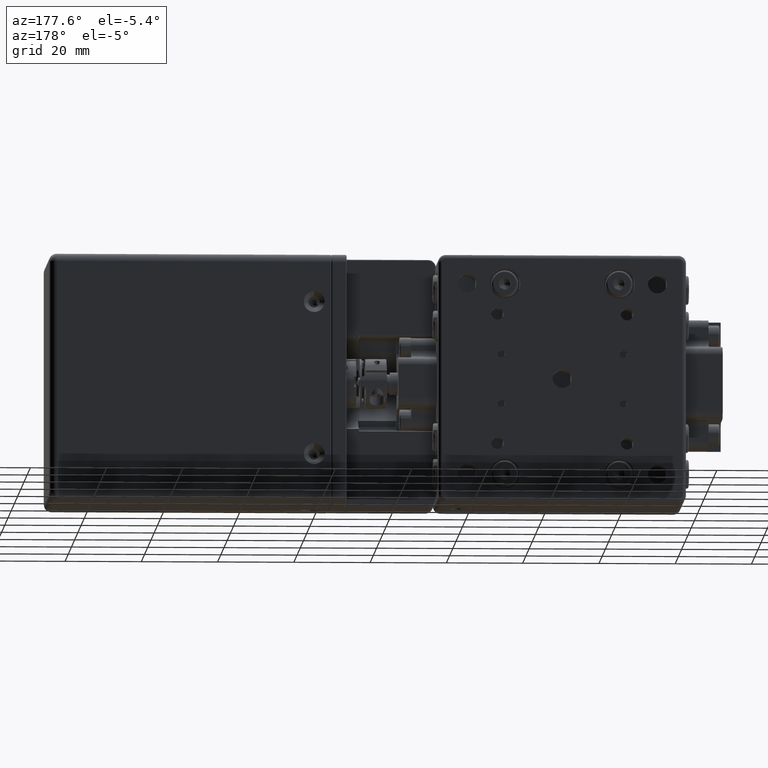
[diagram: clean part render]
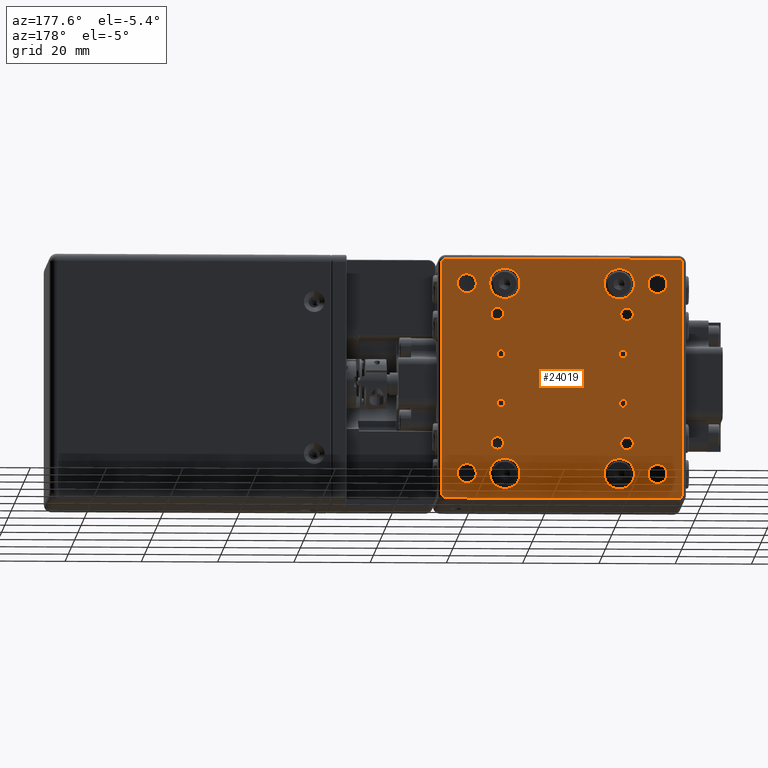
[diagram: same view with one face highlighted and labeled with its STEP entity id]
A machine part, auxiliary view. The second image highlights one B-rep face of the part: STEP entity #24019.
In plain terms, the highlighted planar face has unit normal (0, -1, 0).
Its self-contained STEP definition (entity closure, byte-faithful):
#160 = CARTESIAN_POINT ( 'NONE',  ( -89.48615177131389942, 20.00221016956369979, -21.00000000000000000 ) ) ;
#198 = FACE_BOUND ( 'NONE', #26716, .T. ) ;
#207 = CARTESIAN_POINT ( 'NONE',  ( -79.48615177131389942, 20.00221016956369979, -25.00000000000000000 ) ) ;
#341 = CARTESIAN_POINT ( 'NONE',  ( -79.48615177131389942, 20.00221016956369979, 22.50000000000000000 ) ) ;
#345 = CIRCLE ( 'NONE', #2272, 4.000000000000000000 ) ;
#977 = DIRECTION ( 'NONE',  ( 0.000000000000000000, 0.000000000000000000, 1.000000000000000000 ) ) ;
#1223 = AXIS2_PLACEMENT_3D ( 'NONE', #16522, #42801, #42518 ) ;
#1287 = VERTEX_POINT ( 'NONE', #40618 ) ;
#1410 = CARTESIAN_POINT ( 'NONE',  ( -87.48615177131389942, 20.00221016956369979, 15.35000000000000142 ) ) ;
#1526 = DIRECTION ( 'NONE',  ( 0.000000000000000000, 1.000000000000000000, 0.000000000000000000 ) ) ;
#1582 = DIRECTION ( 'NONE',  ( 0.000000000000000000, 0.000000000000000000, 1.000000000000000000 ) ) ;
#1676 = DIRECTION ( 'NONE',  ( 0.000000000000000000, 1.000000000000000000, 0.000000000000000000 ) ) ;
#1743 = AXIS2_PLACEMENT_3D ( 'NONE', #5303, #36065, #13486 ) ;
#1745 = EDGE_CURVE ( 'NONE', #17860, #11691, #36659, .T. ) ;
#1824 = AXIS2_PLACEMENT_3D ( 'NONE', #43142, #13214, #30702 ) ;
#1880 = CIRCLE ( 'NONE', #47033, 2.499999999999998668 ) ;
#2019 = ORIENTED_EDGE ( 'NONE', *, *, #41948, .F. ) ;
#2020 = DIRECTION ( 'NONE',  ( 0.000000000000000000, 1.000000000000000000, 0.000000000000000000 ) ) ;
#2095 = VERTEX_POINT ( 'NONE', #35090 ) ;
#2272 = AXIS2_PLACEMENT_3D ( 'NONE', #34357, #35182, #22179 ) ;
#2326 = CARTESIAN_POINT ( 'NONE',  ( -119.4861517713139989, 20.00221016956369979, -21.00000000000000000 ) ) ;
#2679 = CARTESIAN_POINT ( 'NONE',  ( -73.98615177131389942, 20.00221016956369979, -30.50000000000000000 ) ) ;
#2875 = CARTESIAN_POINT ( 'NONE',  ( -79.48615177131389942, 20.00221016956369979, 25.00000000000000000 ) ) ;
#2887 = CARTESIAN_POINT ( 'NONE',  ( -104.4861517713139989, 20.00221016956369979, 8.597364329291679493E-14 ) ) ;
#2987 = CIRCLE ( 'NONE', #48138, 4.000000000000000000 ) ;
#2995 = AXIS2_PLACEMENT_3D ( 'NONE', #22770, #23593, #1582 ) ;
#3526 = CARTESIAN_POINT ( 'NONE',  ( -72.98615177131389942, 20.00221016956369979, 32.50000000000000000 ) ) ;
#3590 = CARTESIAN_POINT ( 'NONE',  ( -73.98615177131389942, 20.00221016956369979, 31.50000000000000000 ) ) ;
#3592 = ORIENTED_EDGE ( 'NONE', *, *, #10110, .T. ) ;
#3655 = ORIENTED_EDGE ( 'NONE', *, *, #38895, .F. ) ;
#4036 = CARTESIAN_POINT ( 'NONE',  ( -120.4861517713139989, 20.00221016956369979, -5.474999999999940137 ) ) ;
#4163 = ORIENTED_EDGE ( 'NONE', *, *, #13833, .F. ) ;
#4595 = CARTESIAN_POINT ( 'NONE',  ( -121.4861517713139989, 20.00221016956369979, 17.00000000000000000 ) ) ;
#4690 = CIRCLE ( 'NONE', #10954, 4.000000000000000000 ) ;
#4746 = FACE_BOUND ( 'NONE', #44849, .T. ) ;
#5157 = AXIS2_PLACEMENT_3D ( 'NONE', #11938, #55726, #30574 ) ;
#5164 = EDGE_CURVE ( 'NONE', #41518, #45672, #30570, .T. ) ;
#5303 = CARTESIAN_POINT ( 'NONE',  ( -136.9861517713140131, 20.00221016956369979, 32.50000000000000000 ) ) ;
#5411 = CIRCLE ( 'NONE', #15302, 2.499999999999998668 ) ;
#5535 = EDGE_LOOP ( 'NONE', ( #18048, #23850 ) ) ;
#5540 = AXIS2_PLACEMENT_3D ( 'NONE', #39432, #30658, #39967 ) ;
#5612 = DIRECTION ( 'NONE',  ( 0.000000000000000000, 0.000000000000000000, 1.000000000000000000 ) ) ;
#5754 = VERTEX_POINT ( 'NONE', #20500 ) ;
#5907 = EDGE_LOOP ( 'NONE', ( #15733, #54047 ) ) ;
#6310 = ORIENTED_EDGE ( 'NONE', *, *, #53824, .F. ) ;
#6322 = AXIS2_PLACEMENT_3D ( 'NONE', #39955, #1526, #18755 ) ;
#6493 = ORIENTED_EDGE ( 'NONE', *, *, #14851, .F. ) ;
#6523 = AXIS2_PLACEMENT_3D ( 'NONE', #54038, #36262, #48982 ) ;
#6612 = ORIENTED_EDGE ( 'NONE', *, *, #55204, .F. ) ;
#6662 = VERTEX_POINT ( 'NONE', #24890 ) ;
#7301 = CARTESIAN_POINT ( 'NONE',  ( -135.9861517713140131, 20.00221016956369979, 30.50000000000000000 ) ) ;
#7769 = VERTEX_POINT ( 'NONE', #23700 ) ;
#8044 = LINE ( 'NONE', #3526, #55301 ) ;
#8058 = VERTEX_POINT ( 'NONE', #35829 ) ;
#8083 = CARTESIAN_POINT ( 'NONE',  ( -87.48615177131389942, 20.00221016956369979, -15.35000000000000142 ) ) ;
#8231 = VERTEX_POINT ( 'NONE', #32978 ) ;
#8288 = VECTOR ( 'NONE', #24573, 1000.000000000000000 ) ;
#8521 = DIRECTION ( 'NONE',  ( 0.000000000000000000, 0.000000000000000000, -1.000000000000000000 ) ) ;
#8604 = ORIENTED_EDGE ( 'NONE', *, *, #46741, .F. ) ;
#8617 = CIRCLE ( 'NONE', #54615, 1.024999999999988587 ) ;
#8864 = ORIENTED_EDGE ( 'NONE', *, *, #42405, .T. ) ;
#9231 = CIRCLE ( 'NONE', #6523, 1.649999999999998579 ) ;
#9488 = VECTOR ( 'NONE', #39833, 1000.000000000000000 ) ;
#9743 = DIRECTION ( 'NONE',  ( 0.000000000000000000, 1.000000000000000000, 0.000000000000000000 ) ) ;
#9765 = EDGE_CURVE ( 'NONE', #12073, #19475, #45503, .T. ) ;
#10110 = EDGE_CURVE ( 'NONE', #8058, #52720, #14126, .T. ) ;
#10219 = CARTESIAN_POINT ( 'NONE',  ( -89.48615177131389942, 20.00221016956369979, 21.00000000000000000 ) ) ;
#10740 = CIRCLE ( 'NONE', #14330, 2.499999999999998668 ) ;
#10954 = AXIS2_PLACEMENT_3D ( 'NONE', #15042, #2020, #26722 ) ;
#10961 = CIRCLE ( 'NONE', #20872, 2.499999999999998668 ) ;
#11030 = ORIENTED_EDGE ( 'NONE', *, *, #19703, .F. ) ;
#11299 = DIRECTION ( 'NONE',  ( 0.000000000000000000, 1.000000000000000000, 0.000000000000000000 ) ) ;
#11469 = DIRECTION ( 'NONE',  ( 0.000000000000000000, 1.000000000000000000, 0.000000000000000000 ) ) ;
#11576 = CARTESIAN_POINT ( 'NONE',  ( -88.48615177131389942, 20.00221016956369979, -6.500000000000000000 ) ) ;
#11593 = CARTESIAN_POINT ( 'NONE',  ( -136.9861517713140131, 20.00221016956369979, 31.50000000000000000 ) ) ;
#11597 = AXIS2_PLACEMENT_3D ( 'NONE', #30120, #42831, #977 ) ;
#11691 = VERTEX_POINT ( 'NONE', #46517 ) ;
#11717 = AXIS2_PLACEMENT_3D ( 'NONE', #31214, #9743, #26962 ) ;
#11766 = DIRECTION ( 'NONE',  ( 0.000000000000000000, 1.000000000000000000, 0.000000000000000000 ) ) ;
#11938 = CARTESIAN_POINT ( 'NONE',  ( -120.4861517713139989, 20.00221016956369979, -6.500000000000000000 ) ) ;
#12073 = VERTEX_POINT ( 'NONE', #16608 ) ;
#12088 = FACE_BOUND ( 'NONE', #5535, .T. ) ;
#12227 = DIRECTION ( 'NONE',  ( 0.000000000000000000, 0.000000000000000000, 1.000000000000000000 ) ) ;
#12234 = DIRECTION ( 'NONE',  ( 0.000000000000000000, 0.000000000000000000, 1.000000000000000000 ) ) ;
#12510 = CARTESIAN_POINT ( 'NONE',  ( -120.4861517713139989, 20.00221016956369979, -6.500000000000000000 ) ) ;
#12627 = ORIENTED_EDGE ( 'NONE', *, *, #50095, .F. ) ;
#12774 = CARTESIAN_POINT ( 'NONE',  ( -88.48615177131389942, 20.00221016956369979, 5.475000000000060041 ) ) ;
#12848 = DIRECTION ( 'NONE',  ( 0.000000000000000000, 0.000000000000000000, -1.000000000000000000 ) ) ;
#12901 = ORIENTED_EDGE ( 'NONE', *, *, #9765, .F. ) ;
#12921 = DIRECTION ( 'NONE',  ( 0.000000000000000000, 0.000000000000000000, 1.000000000000000000 ) ) ;
#12939 = FACE_BOUND ( 'NONE', #34148, .T. ) ;
#13214 = DIRECTION ( 'NONE',  ( 0.000000000000000000, 1.000000000000000000, 0.000000000000000000 ) ) ;
#13486 = DIRECTION ( 'NONE',  ( 0.000000000000000000, 0.000000000000000000, -1.000000000000000000 ) ) ;
#13792 = CIRCLE ( 'NONE', #22814, 2.499999999999998668 ) ;
#13833 = EDGE_CURVE ( 'NONE', #48128, #20720, #345, .T. ) ;
#13958 = CARTESIAN_POINT ( 'NONE',  ( -88.48615177131389942, 20.00221016956369979, -7.524999999999999467 ) ) ;
#14014 = ORIENTED_EDGE ( 'NONE', *, *, #46430, .T. ) ;
#14110 = ORIENTED_EDGE ( 'NONE', *, *, #45213, .F. ) ;
#14126 = LINE ( 'NONE', #18638, #9488 ) ;
#14164 = DIRECTION ( 'NONE',  ( 0.000000000000000000, 0.000000000000000000, 1.000000000000000000 ) ) ;
#14330 = AXIS2_PLACEMENT_3D ( 'NONE', #2875, #42424, #20106 ) ;
#14851 = EDGE_CURVE ( 'NONE', #19475, #12073, #2987, .T. ) ;
#15042 = CARTESIAN_POINT ( 'NONE',  ( -89.48615177131389942, 20.00221016956369979, 25.00000000000000000 ) ) ;
#15138 = VERTEX_POINT ( 'NONE', #8083 ) ;
#15253 = EDGE_LOOP ( 'NONE', ( #20730, #52137, #8864, #38418, #14014, #26654, #3592, #40141 ) ) ;
#15302 = AXIS2_PLACEMENT_3D ( 'NONE', #40782, #24368, #15908 ) ;
#15467 = CARTESIAN_POINT ( 'NONE',  ( -120.4861517713139989, 20.00221016956369979, 5.475000000000060041 ) ) ;
#15507 = CIRCLE ( 'NONE', #21841, 2.500000000000000000 ) ;
#15666 = DIRECTION ( 'NONE',  ( 0.000000000000000000, 0.000000000000000000, 1.000000000000000000 ) ) ;
#15719 = AXIS2_PLACEMENT_3D ( 'NONE', #12510, #50940, #12234 ) ;
#15733 = ORIENTED_EDGE ( 'NONE', *, *, #24571, .F. ) ;
#15871 = ORIENTED_EDGE ( 'NONE', *, *, #53485, .F. ) ;
#15908 = DIRECTION ( 'NONE',  ( 0.000000000000000000, 0.000000000000000000, 1.000000000000000000 ) ) ;
#15938 = ORIENTED_EDGE ( 'NONE', *, *, #23209, .F. ) ;
#16438 = CARTESIAN_POINT ( 'NONE',  ( -72.98615177131389942, 20.00221016956369979, -30.50000000000000000 ) ) ;
#16522 = CARTESIAN_POINT ( 'NONE',  ( -134.9861517713140131, 20.00221016956369979, 30.50000000000000000 ) ) ;
#16608 = CARTESIAN_POINT ( 'NONE',  ( -89.48615177131389942, 20.00221016956369979, -29.00000000000000000 ) ) ;
#16664 = CIRCLE ( 'NONE', #48249, 2.499999999999998668 ) ;
#16854 = EDGE_LOOP ( 'NONE', ( #54605, #32365 ) ) ;
#17071 = DIRECTION ( 'NONE',  ( 0.000000000000000000, 0.000000000000000000, 1.000000000000000000 ) ) ;
#17081 = CARTESIAN_POINT ( 'NONE',  ( -134.9861517713140131, 20.00221016956369979, -31.50000000000000000 ) ) ;
#17285 = DIRECTION ( 'NONE',  ( 0.000000000000000000, 0.000000000000000000, 1.000000000000000000 ) ) ;
#17345 = AXIS2_PLACEMENT_3D ( 'NONE', #2679, #11469, #51497 ) ;
#17420 = DIRECTION ( 'NONE',  ( 0.000000000000000000, 1.000000000000000000, 0.000000000000000000 ) ) ;
#17435 = FACE_BOUND ( 'NONE', #37149, .T. ) ;
#17860 = VERTEX_POINT ( 'NONE', #1410 ) ;
#18047 = ORIENTED_EDGE ( 'NONE', *, *, #41249, .F. ) ;
#18048 = ORIENTED_EDGE ( 'NONE', *, *, #21971, .F. ) ;
#18079 = EDGE_LOOP ( 'NONE', ( #27958, #18047 ) ) ;
#18091 = CIRCLE ( 'NONE', #1824, 4.000000000000000000 ) ;
#18112 = CIRCLE ( 'NONE', #32543, 1.650000000000000355 ) ;
#18293 = CARTESIAN_POINT ( 'NONE',  ( -121.4861517713139989, 20.00221016956369979, 18.64999999999999858 ) ) ;
#18313 = ORIENTED_EDGE ( 'NONE', *, *, #51900, .F. ) ;
#18409 = AXIS2_PLACEMENT_3D ( 'NONE', #42987, #47784, #8521 ) ;
#18638 = CARTESIAN_POINT ( 'NONE',  ( -135.9861517713140131, 20.00221016956369979, 32.50000000000000000 ) ) ;
#18755 = DIRECTION ( 'NONE',  ( 0.000000000000000000, 0.000000000000000000, -1.000000000000000000 ) ) ;
#18795 = EDGE_CURVE ( 'NONE', #45672, #41518, #8617, .T. ) ;
#18836 = VERTEX_POINT ( 'NONE', #49163 ) ;
#19070 = ORIENTED_EDGE ( 'NONE', *, *, #19360, .F. ) ;
#19306 = AXIS2_PLACEMENT_3D ( 'NONE', #50464, #11766, #46230 ) ;
#19360 = EDGE_CURVE ( 'NONE', #40419, #43889, #31997, .T. ) ;
#19475 = VERTEX_POINT ( 'NONE', #160 ) ;
#19703 = EDGE_CURVE ( 'NONE', #21365, #35845, #4690, .T. ) ;
#19773 = CARTESIAN_POINT ( 'NONE',  ( -129.4861517713140131, 20.00221016956369979, -25.00000000000000000 ) ) ;
#19810 = EDGE_LOOP ( 'NONE', ( #6493, #12901 ) ) ;
#19934 = AXIS2_PLACEMENT_3D ( 'NONE', #52478, #47694, #44280 ) ;
#19959 = VERTEX_POINT ( 'NONE', #29877 ) ;
#20055 = EDGE_CURVE ( 'NONE', #43889, #40419, #18091, .T. ) ;
#20091 = ORIENTED_EDGE ( 'NONE', *, *, #25677, .F. ) ;
#20105 = CARTESIAN_POINT ( 'NONE',  ( -87.48615177131389942, 20.00221016956369979, 17.00000000000000000 ) ) ;
#20106 = DIRECTION ( 'NONE',  ( 0.000000000000000000, 0.000000000000000000, 1.000000000000000000 ) ) ;
#20500 = CARTESIAN_POINT ( 'NONE',  ( -79.48615177131389942, 20.00221016956369979, -27.50000000000000000 ) ) ;
#20547 = CARTESIAN_POINT ( 'NONE',  ( -89.48615177131389942, 20.00221016956369979, 29.00000000000000000 ) ) ;
#20720 = VERTEX_POINT ( 'NONE', #2326 ) ;
#20730 = ORIENTED_EDGE ( 'NONE', *, *, #30243, .T. ) ;
#20749 = EDGE_CURVE ( 'NONE', #28941, #1287, #37082, .T. ) ;
#20828 = FACE_BOUND ( 'NONE', #16854, .T. ) ;
#20872 = AXIS2_PLACEMENT_3D ( 'NONE', #53139, #52875, #14164 ) ;
#21107 = CIRCLE ( 'NONE', #51823, 1.024999999999988587 ) ;
#21175 = DIRECTION ( 'NONE',  ( 0.000000000000000000, 0.000000000000000000, 1.000000000000000000 ) ) ;
#21258 = DIRECTION ( 'NONE',  ( 0.000000000000000000, 1.000000000000000000, 0.000000000000000000 ) ) ;
#21365 = VERTEX_POINT ( 'NONE', #20547 ) ;
#21400 = DIRECTION ( 'NONE',  ( 0.000000000000000000, 0.000000000000000000, 1.000000000000000000 ) ) ;
#21674 = CARTESIAN_POINT ( 'NONE',  ( -87.48615177131389942, 20.00221016956369979, -18.64999999999999858 ) ) ;
#21798 = DIRECTION ( 'NONE',  ( 0.000000000000000000, 1.000000000000000000, 0.000000000000000000 ) ) ;
#21841 = AXIS2_PLACEMENT_3D ( 'NONE', #37219, #28478, #28180 ) ;
#21882 = CIRCLE ( 'NONE', #24581, 2.499999999999998668 ) ;
#21971 = EDGE_CURVE ( 'NONE', #33283, #49472, #9231, .T. ) ;
#22179 = DIRECTION ( 'NONE',  ( 0.000000000000000000, 0.000000000000000000, 1.000000000000000000 ) ) ;
#22569 = CIRCLE ( 'NONE', #11717, 1.650000000000000355 ) ;
#22770 = CARTESIAN_POINT ( 'NONE',  ( -129.4861517713140131, 20.00221016956369979, 25.00000000000000000 ) ) ;
#22814 = AXIS2_PLACEMENT_3D ( 'NONE', #50006, #29394, #38145 ) ;
#23183 = ORIENTED_EDGE ( 'NONE', *, *, #1745, .F. ) ;
#23209 = EDGE_CURVE ( 'NONE', #15138, #53473, #22569, .T. ) ;
#23422 = ORIENTED_EDGE ( 'NONE', *, *, #32192, .F. ) ;
#23593 = DIRECTION ( 'NONE',  ( 0.000000000000000000, 1.000000000000000000, 0.000000000000000000 ) ) ;
#23700 = CARTESIAN_POINT ( 'NONE',  ( -79.48615177131389942, 20.00221016956369979, 27.50000000000000000 ) ) ;
#23850 = ORIENTED_EDGE ( 'NONE', *, *, #51830, .F. ) ;
#24010 = AXIS2_PLACEMENT_3D ( 'NONE', #20105, #45271, #41871 ) ;
#24019 = ADVANCED_FACE ( 'NONE', ( #20828, #29608, #46835, #51635, #4746, #12939, #25078, #25356, #30171, #50796, #12088, #47412, #25919, #43153, #38917, #198, #17435, #34698 ), #30716, .F. ) ;
#24024 = DIRECTION ( 'NONE',  ( 0.000000000000000000, 1.000000000000000000, 0.000000000000000000 ) ) ;
#24368 = DIRECTION ( 'NONE',  ( 0.000000000000000000, 1.000000000000000000, 0.000000000000000000 ) ) ;
#24457 = EDGE_CURVE ( 'NONE', #33625, #53042, #27927, .T. ) ;
#24571 = EDGE_CURVE ( 'NONE', #19959, #5754, #5411, .T. ) ;
#24573 = DIRECTION ( 'NONE',  ( 1.000000000000000000, 0.000000000000000000, 0.000000000000000000 ) ) ;
#24581 = AXIS2_PLACEMENT_3D ( 'NONE', #38629, #17420, #12921 ) ;
#24626 = VERTEX_POINT ( 'NONE', #42737 ) ;
#24890 = CARTESIAN_POINT ( 'NONE',  ( -129.4861517713140131, 20.00221016956369979, -27.50000000000000000 ) ) ;
#24938 = CARTESIAN_POINT ( 'NONE',  ( -87.48615177131389942, 20.00221016956369979, -17.00000000000000000 ) ) ;
#25078 = FACE_BOUND ( 'NONE', #37495, .T. ) ;
#25084 = CARTESIAN_POINT ( 'NONE',  ( -134.9861517713140131, 20.00221016956369979, -31.50000000000000000 ) ) ;
#25106 = CARTESIAN_POINT ( 'NONE',  ( -88.48615177131389942, 20.00221016956369979, 6.500000000000000000 ) ) ;
#25356 = FACE_BOUND ( 'NONE', #19810, .T. ) ;
#25427 = CARTESIAN_POINT ( 'NONE',  ( -129.4861517713140131, 20.00221016956369979, 27.50000000000000000 ) ) ;
#25516 = CIRCLE ( 'NONE', #26412, 1.024999999999988587 ) ;
#25677 = EDGE_CURVE ( 'NONE', #2095, #18836, #39162, .T. ) ;
#25838 = LINE ( 'NONE', #17081, #36724 ) ;
#25919 = FACE_BOUND ( 'NONE', #52555, .T. ) ;
#25964 = ORIENTED_EDGE ( 'NONE', *, *, #43812, .F. ) ;
#26027 = AXIS2_PLACEMENT_3D ( 'NONE', #29517, #55214, #15666 ) ;
#26412 = AXIS2_PLACEMENT_3D ( 'NONE', #33624, #42365, #21175 ) ;
#26578 = VERTEX_POINT ( 'NONE', #37826 ) ;
#26654 = ORIENTED_EDGE ( 'NONE', *, *, #54200, .T. ) ;
#26716 = EDGE_LOOP ( 'NONE', ( #23422, #25964 ) ) ;
#26722 = DIRECTION ( 'NONE',  ( 0.000000000000000000, 0.000000000000000000, 1.000000000000000000 ) ) ;
#26813 = CIRCLE ( 'NONE', #5157, 1.024999999999988587 ) ;
#26929 = CIRCLE ( 'NONE', #11597, 1.024999999999988587 ) ;
#26962 = DIRECTION ( 'NONE',  ( 0.000000000000000000, 0.000000000000000000, 1.000000000000000000 ) ) ;
#26986 = EDGE_LOOP ( 'NONE', ( #6612, #39012 ) ) ;
#27293 = EDGE_LOOP ( 'NONE', ( #12627, #2019 ) ) ;
#27340 = VERTEX_POINT ( 'NONE', #41673 ) ;
#27880 = VERTEX_POINT ( 'NONE', #4036 ) ;
#27927 = CIRCLE ( 'NONE', #6322, 1.000000000000000888 ) ;
#27958 = ORIENTED_EDGE ( 'NONE', *, *, #43237, .F. ) ;
#28096 = VERTEX_POINT ( 'NONE', #25427 ) ;
#28180 = DIRECTION ( 'NONE',  ( 0.000000000000000000, 0.000000000000000000, 1.000000000000000000 ) ) ;
#28281 = CIRCLE ( 'NONE', #1223, 1.000000000000000888 ) ;
#28478 = DIRECTION ( 'NONE',  ( 0.000000000000000000, 1.000000000000000000, 0.000000000000000000 ) ) ;
#28534 = DIRECTION ( 'NONE',  ( 0.000000000000000000, 0.000000000000000000, 1.000000000000000000 ) ) ;
#28814 = ORIENTED_EDGE ( 'NONE', *, *, #49723, .F. ) ;
#28906 = DIRECTION ( 'NONE',  ( 0.000000000000000000, 1.000000000000000000, 0.000000000000000000 ) ) ;
#28941 = VERTEX_POINT ( 'NONE', #32247 ) ;
#28956 = CIRCLE ( 'NONE', #19934, 4.000000000000000000 ) ;
#29184 = CIRCLE ( 'NONE', #2995, 2.499999999999998668 ) ;
#29394 = DIRECTION ( 'NONE',  ( 0.000000000000000000, 1.000000000000000000, 0.000000000000000000 ) ) ;
#29517 = CARTESIAN_POINT ( 'NONE',  ( -87.48615177131389942, 20.00221016956369979, 17.00000000000000000 ) ) ;
#29608 = FACE_BOUND ( 'NONE', #18079, .T. ) ;
#29877 = CARTESIAN_POINT ( 'NONE',  ( -79.48615177131389942, 20.00221016956369979, -22.50000000000000000 ) ) ;
#30016 = DIRECTION ( 'NONE',  ( 0.000000000000000000, 1.000000000000000000, 0.000000000000000000 ) ) ;
#30120 = CARTESIAN_POINT ( 'NONE',  ( -120.4861517713139989, 20.00221016956369979, 6.500000000000000000 ) ) ;
#30171 = FACE_BOUND ( 'NONE', #45568, .T. ) ;
#30180 = DIRECTION ( 'NONE',  ( 0.000000000000000000, 1.000000000000000000, 0.000000000000000000 ) ) ;
#30243 = EDGE_CURVE ( 'NONE', #26578, #33625, #50295, .T. ) ;
#30570 = CIRCLE ( 'NONE', #31488, 1.024999999999988587 ) ;
#30574 = DIRECTION ( 'NONE',  ( 0.000000000000000000, 0.000000000000000000, 1.000000000000000000 ) ) ;
#30658 = DIRECTION ( 'NONE',  ( 0.000000000000000000, 1.000000000000000000, 0.000000000000000000 ) ) ;
#30702 = DIRECTION ( 'NONE',  ( 0.000000000000000000, 0.000000000000000000, 1.000000000000000000 ) ) ;
#30716 = PLANE ( 'NONE',  #1743 ) ;
#30812 = CARTESIAN_POINT ( 'NONE',  ( -89.48615177131389942, 20.00221016956369979, -25.00000000000000000 ) ) ;
#31214 = CARTESIAN_POINT ( 'NONE',  ( -87.48615177131389942, 20.00221016956369979, -17.00000000000000000 ) ) ;
#31488 = AXIS2_PLACEMENT_3D ( 'NONE', #25106, #42346, #5612 ) ;
#31917 = DIRECTION ( 'NONE',  ( 0.000000000000000000, 0.000000000000000000, 1.000000000000000000 ) ) ;
#31997 = CIRCLE ( 'NONE', #19306, 4.000000000000000000 ) ;
#32192 = EDGE_CURVE ( 'NONE', #27340, #36864, #26929, .T. ) ;
#32247 = CARTESIAN_POINT ( 'NONE',  ( -104.4861517713139989, 20.00221016956369979, 2.500000000000065281 ) ) ;
#32355 = EDGE_LOOP ( 'NONE', ( #15938, #18313 ) ) ;
#32365 = ORIENTED_EDGE ( 'NONE', *, *, #42570, .F. ) ;
#32543 = AXIS2_PLACEMENT_3D ( 'NONE', #24938, #42171, #38218 ) ;
#32850 = DIRECTION ( 'NONE',  ( 0.000000000000000000, 1.000000000000000000, 0.000000000000000000 ) ) ;
#32978 = CARTESIAN_POINT ( 'NONE',  ( -120.4861517713139989, 20.00221016956369979, -7.524999999999999467 ) ) ;
#33283 = VERTEX_POINT ( 'NONE', #18293 ) ;
#33624 = CARTESIAN_POINT ( 'NONE',  ( -88.48615177131389942, 20.00221016956369979, -6.500000000000000000 ) ) ;
#33625 = VERTEX_POINT ( 'NONE', #3590 ) ;
#34148 = EDGE_LOOP ( 'NONE', ( #15871, #4163 ) ) ;
#34357 = CARTESIAN_POINT ( 'NONE',  ( -119.4861517713139989, 20.00221016956369979, -25.00000000000000000 ) ) ;
#34436 = ORIENTED_EDGE ( 'NONE', *, *, #20749, .F. ) ;
#34612 = CARTESIAN_POINT ( 'NONE',  ( -89.48615177131389942, 20.00221016956369979, 25.00000000000000000 ) ) ;
#34684 = VERTEX_POINT ( 'NONE', #35093 ) ;
#34698 = FACE_OUTER_BOUND ( 'NONE', #15253, .T. ) ;
#35023 = ORIENTED_EDGE ( 'NONE', *, *, #5164, .F. ) ;
#35090 = CARTESIAN_POINT ( 'NONE',  ( -121.4861517713139989, 20.00221016956369979, -15.35000000000000142 ) ) ;
#35093 = CARTESIAN_POINT ( 'NONE',  ( -73.98615177131389942, 20.00221016956369979, -31.50000000000000000 ) ) ;
#35114 = CARTESIAN_POINT ( 'NONE',  ( -89.48615177131389942, 20.00221016956369979, -25.00000000000000000 ) ) ;
#35182 = DIRECTION ( 'NONE',  ( 0.000000000000000000, 1.000000000000000000, 0.000000000000000000 ) ) ;
#35366 = CARTESIAN_POINT ( 'NONE',  ( -129.4861517713140131, 20.00221016956369979, 22.50000000000000000 ) ) ;
#35430 = VERTEX_POINT ( 'NONE', #13958 ) ;
#35829 = CARTESIAN_POINT ( 'NONE',  ( -135.9861517713140131, 20.00221016956369979, -30.50000000000000000 ) ) ;
#35845 = VERTEX_POINT ( 'NONE', #10219 ) ;
#35890 = CARTESIAN_POINT ( 'NONE',  ( -88.48615177131389942, 20.00221016956369979, 6.500000000000000000 ) ) ;
#36065 = DIRECTION ( 'NONE',  ( 0.000000000000000000, -1.000000000000000000, 0.000000000000000000 ) ) ;
#36262 = DIRECTION ( 'NONE',  ( 0.000000000000000000, 1.000000000000000000, 0.000000000000000000 ) ) ;
#36549 = EDGE_CURVE ( 'NONE', #35430, #47151, #25516, .T. ) ;
#36659 = CIRCLE ( 'NONE', #24010, 1.649999999999998579 ) ;
#36724 = VECTOR ( 'NONE', #51845, 1000.000000000000000 ) ;
#36864 = VERTEX_POINT ( 'NONE', #15467 ) ;
#37082 = CIRCLE ( 'NONE', #50592, 2.500000000000000000 ) ;
#37149 = EDGE_LOOP ( 'NONE', ( #35023, #54854 ) ) ;
#37219 = CARTESIAN_POINT ( 'NONE',  ( -104.4861517713139989, 20.00221016956369979, 8.597364329291679493E-14 ) ) ;
#37420 = AXIS2_PLACEMENT_3D ( 'NONE', #35114, #21258, #43026 ) ;
#37495 = EDGE_LOOP ( 'NONE', ( #19070, #49110 ) ) ;
#37826 = CARTESIAN_POINT ( 'NONE',  ( -134.9861517713140131, 20.00221016956369979, 31.50000000000000000 ) ) ;
#37842 = EDGE_LOOP ( 'NONE', ( #20091, #6310 ) ) ;
#38145 = DIRECTION ( 'NONE',  ( 0.000000000000000000, 0.000000000000000000, 1.000000000000000000 ) ) ;
#38218 = DIRECTION ( 'NONE',  ( 0.000000000000000000, 0.000000000000000000, 1.000000000000000000 ) ) ;
#38418 = ORIENTED_EDGE ( 'NONE', *, *, #53050, .T. ) ;
#38564 = DIRECTION ( 'NONE',  ( 0.000000000000000000, 1.000000000000000000, 0.000000000000000000 ) ) ;
#38622 = CIRCLE ( 'NONE', #45818, 1.024999999999988587 ) ;
#38629 = CARTESIAN_POINT ( 'NONE',  ( -79.48615177131389942, 20.00221016956369979, 25.00000000000000000 ) ) ;
#38892 = CARTESIAN_POINT ( 'NONE',  ( -121.4861517713139989, 20.00221016956369979, 15.35000000000000142 ) ) ;
#38894 = AXIS2_PLACEMENT_3D ( 'NONE', #4595, #21798, #17285 ) ;
#38895 = EDGE_CURVE ( 'NONE', #8231, #27880, #44617, .T. ) ;
#38917 = FACE_BOUND ( 'NONE', #26986, .T. ) ;
#39012 = ORIENTED_EDGE ( 'NONE', *, *, #36549, .F. ) ;
#39141 = VERTEX_POINT ( 'NONE', #25084 ) ;
#39162 = CIRCLE ( 'NONE', #41840, 1.650000000000000355 ) ;
#39371 = EDGE_CURVE ( 'NONE', #5754, #19959, #16664, .T. ) ;
#39432 = CARTESIAN_POINT ( 'NONE',  ( -121.4861517713139989, 20.00221016956369979, -17.00000000000000000 ) ) ;
#39833 = DIRECTION ( 'NONE',  ( 0.000000000000000000, 0.000000000000000000, 1.000000000000000000 ) ) ;
#39955 = CARTESIAN_POINT ( 'NONE',  ( -73.98615177131389942, 20.00221016956369979, 30.50000000000000000 ) ) ;
#39967 = DIRECTION ( 'NONE',  ( 0.000000000000000000, 0.000000000000000000, 1.000000000000000000 ) ) ;
#40141 = ORIENTED_EDGE ( 'NONE', *, *, #43484, .T. ) ;
#40419 = VERTEX_POINT ( 'NONE', #52238 ) ;
#40605 = CARTESIAN_POINT ( 'NONE',  ( -119.4861517713139989, 20.00221016956369979, -29.00000000000000000 ) ) ;
#40618 = CARTESIAN_POINT ( 'NONE',  ( -104.4861517713139989, 20.00221016956369979, -2.499999999999904965 ) ) ;
#40782 = CARTESIAN_POINT ( 'NONE',  ( -79.48615177131389942, 20.00221016956369979, -25.00000000000000000 ) ) ;
#41249 = EDGE_CURVE ( 'NONE', #50419, #28096, #10961, .T. ) ;
#41261 = CARTESIAN_POINT ( 'NONE',  ( -88.48615177131389942, 20.00221016956369979, -5.474999999999940137 ) ) ;
#41518 = VERTEX_POINT ( 'NONE', #47168 ) ;
#41673 = CARTESIAN_POINT ( 'NONE',  ( -120.4861517713139989, 20.00221016956369979, 7.524999999999999467 ) ) ;
#41678 = CARTESIAN_POINT ( 'NONE',  ( -72.98615177131389942, 20.00221016956369979, 30.50000000000000000 ) ) ;
#41820 = EDGE_CURVE ( 'NONE', #1287, #28941, #15507, .T. ) ;
#41840 = AXIS2_PLACEMENT_3D ( 'NONE', #50380, #28906, #45036 ) ;
#41871 = DIRECTION ( 'NONE',  ( 0.000000000000000000, 0.000000000000000000, 1.000000000000000000 ) ) ;
#41948 = EDGE_CURVE ( 'NONE', #53082, #7769, #21882, .T. ) ;
#42171 = DIRECTION ( 'NONE',  ( 0.000000000000000000, 1.000000000000000000, 0.000000000000000000 ) ) ;
#42346 = DIRECTION ( 'NONE',  ( 0.000000000000000000, 1.000000000000000000, 0.000000000000000000 ) ) ;
#42365 = DIRECTION ( 'NONE',  ( 0.000000000000000000, 1.000000000000000000, 0.000000000000000000 ) ) ;
#42405 = EDGE_CURVE ( 'NONE', #53042, #45687, #8044, .T. ) ;
#42424 = DIRECTION ( 'NONE',  ( 0.000000000000000000, 1.000000000000000000, 0.000000000000000000 ) ) ;
#42512 = CIRCLE ( 'NONE', #5540, 1.650000000000000355 ) ;
#42518 = DIRECTION ( 'NONE',  ( 0.000000000000000000, 0.000000000000000000, -1.000000000000000000 ) ) ;
#42570 = EDGE_CURVE ( 'NONE', #6662, #24626, #13792, .T. ) ;
#42737 = CARTESIAN_POINT ( 'NONE',  ( -129.4861517713140131, 20.00221016956369979, -22.50000000000000000 ) ) ;
#42801 = DIRECTION ( 'NONE',  ( 0.000000000000000000, 1.000000000000000000, 0.000000000000000000 ) ) ;
#42831 = DIRECTION ( 'NONE',  ( 0.000000000000000000, 1.000000000000000000, 0.000000000000000000 ) ) ;
#42901 = CIRCLE ( 'NONE', #50109, 4.000000000000000000 ) ;
#42987 = CARTESIAN_POINT ( 'NONE',  ( -134.9861517713140131, 20.00221016956369979, -30.50000000000000000 ) ) ;
#43026 = DIRECTION ( 'NONE',  ( 0.000000000000000000, 0.000000000000000000, 1.000000000000000000 ) ) ;
#43142 = CARTESIAN_POINT ( 'NONE',  ( -119.4861517713139989, 20.00221016956369979, 25.00000000000000000 ) ) ;
#43153 = FACE_BOUND ( 'NONE', #46237, .T. ) ;
#43168 = CIRCLE ( 'NONE', #26027, 1.649999999999998579 ) ;
#43237 = EDGE_CURVE ( 'NONE', #28096, #50419, #29184, .T. ) ;
#43484 = EDGE_CURVE ( 'NONE', #52720, #26578, #28281, .T. ) ;
#43812 = EDGE_CURVE ( 'NONE', #36864, #27340, #21107, .T. ) ;
#43889 = VERTEX_POINT ( 'NONE', #46170 ) ;
#44280 = DIRECTION ( 'NONE',  ( 0.000000000000000000, 0.000000000000000000, 1.000000000000000000 ) ) ;
#44617 = CIRCLE ( 'NONE', #15719, 1.024999999999988587 ) ;
#44849 = EDGE_LOOP ( 'NONE', ( #34436, #55539 ) ) ;
#45036 = DIRECTION ( 'NONE',  ( 0.000000000000000000, 0.000000000000000000, 1.000000000000000000 ) ) ;
#45213 = EDGE_CURVE ( 'NONE', #35845, #21365, #42901, .T. ) ;
#45271 = DIRECTION ( 'NONE',  ( 0.000000000000000000, 1.000000000000000000, 0.000000000000000000 ) ) ;
#45503 = CIRCLE ( 'NONE', #37420, 4.000000000000000000 ) ;
#45505 = DIRECTION ( 'NONE',  ( 0.000000000000000000, 0.000000000000000000, 1.000000000000000000 ) ) ;
#45560 = DIRECTION ( 'NONE',  ( 0.000000000000000000, 0.000000000000000000, 1.000000000000000000 ) ) ;
#45568 = EDGE_LOOP ( 'NONE', ( #11030, #14110 ) ) ;
#45672 = VERTEX_POINT ( 'NONE', #12774 ) ;
#45687 = VERTEX_POINT ( 'NONE', #16438 ) ;
#45818 = AXIS2_PLACEMENT_3D ( 'NONE', #11576, #11299, #28534 ) ;
#46170 = CARTESIAN_POINT ( 'NONE',  ( -119.4861517713139989, 20.00221016956369979, 21.00000000000000000 ) ) ;
#46230 = DIRECTION ( 'NONE',  ( 0.000000000000000000, 0.000000000000000000, 1.000000000000000000 ) ) ;
#46237 = EDGE_LOOP ( 'NONE', ( #8604, #3655 ) ) ;
#46430 = EDGE_CURVE ( 'NONE', #34684, #39141, #25838, .T. ) ;
#46517 = CARTESIAN_POINT ( 'NONE',  ( -87.48615177131389942, 20.00221016956369979, 18.64999999999999858 ) ) ;
#46741 = EDGE_CURVE ( 'NONE', #27880, #8231, #26813, .T. ) ;
#46835 = FACE_BOUND ( 'NONE', #5907, .T. ) ;
#47033 = AXIS2_PLACEMENT_3D ( 'NONE', #19773, #24024, #45505 ) ;
#47151 = VERTEX_POINT ( 'NONE', #41261 ) ;
#47168 = CARTESIAN_POINT ( 'NONE',  ( -88.48615177131389942, 20.00221016956369979, 7.524999999999999467 ) ) ;
#47412 = FACE_BOUND ( 'NONE', #32355, .T. ) ;
#47694 = DIRECTION ( 'NONE',  ( 0.000000000000000000, 1.000000000000000000, 0.000000000000000000 ) ) ;
#47784 = DIRECTION ( 'NONE',  ( 0.000000000000000000, 1.000000000000000000, 0.000000000000000000 ) ) ;
#48042 = DIRECTION ( 'NONE',  ( 0.000000000000000000, 1.000000000000000000, 0.000000000000000000 ) ) ;
#48128 = VERTEX_POINT ( 'NONE', #40605 ) ;
#48138 = AXIS2_PLACEMENT_3D ( 'NONE', #30812, #48042, #31917 ) ;
#48249 = AXIS2_PLACEMENT_3D ( 'NONE', #207, #30180, #21400 ) ;
#48982 = DIRECTION ( 'NONE',  ( 0.000000000000000000, 0.000000000000000000, 1.000000000000000000 ) ) ;
#49110 = ORIENTED_EDGE ( 'NONE', *, *, #20055, .F. ) ;
#49163 = CARTESIAN_POINT ( 'NONE',  ( -121.4861517713139989, 20.00221016956369979, -18.64999999999999858 ) ) ;
#49472 = VERTEX_POINT ( 'NONE', #38892 ) ;
#49723 = EDGE_CURVE ( 'NONE', #11691, #17860, #43168, .T. ) ;
#49801 = CIRCLE ( 'NONE', #17345, 1.000000000000000888 ) ;
#50006 = CARTESIAN_POINT ( 'NONE',  ( -129.4861517713140131, 20.00221016956369979, -25.00000000000000000 ) ) ;
#50095 = EDGE_CURVE ( 'NONE', #7769, #53082, #10740, .T. ) ;
#50109 = AXIS2_PLACEMENT_3D ( 'NONE', #34612, #38564, #17071 ) ;
#50295 = LINE ( 'NONE', #11593, #8288 ) ;
#50380 = CARTESIAN_POINT ( 'NONE',  ( -121.4861517713139989, 20.00221016956369979, -17.00000000000000000 ) ) ;
#50419 = VERTEX_POINT ( 'NONE', #35366 ) ;
#50464 = CARTESIAN_POINT ( 'NONE',  ( -119.4861517713139989, 20.00221016956369979, 25.00000000000000000 ) ) ;
#50574 = CIRCLE ( 'NONE', #38894, 1.649999999999998579 ) ;
#50592 = AXIS2_PLACEMENT_3D ( 'NONE', #2887, #32850, #45560 ) ;
#50638 = CARTESIAN_POINT ( 'NONE',  ( -120.4861517713139989, 20.00221016956369979, 6.500000000000000000 ) ) ;
#50796 = FACE_BOUND ( 'NONE', #37842, .T. ) ;
#50940 = DIRECTION ( 'NONE',  ( 0.000000000000000000, 1.000000000000000000, 0.000000000000000000 ) ) ;
#51497 = DIRECTION ( 'NONE',  ( 0.000000000000000000, 0.000000000000000000, -1.000000000000000000 ) ) ;
#51635 = FACE_BOUND ( 'NONE', #27293, .T. ) ;
#51823 = AXIS2_PLACEMENT_3D ( 'NONE', #50638, #30016, #12227 ) ;
#51830 = EDGE_CURVE ( 'NONE', #49472, #33283, #50574, .T. ) ;
#51845 = DIRECTION ( 'NONE',  ( -1.000000000000000000, 0.000000000000000000, 0.000000000000000000 ) ) ;
#51900 = EDGE_CURVE ( 'NONE', #53473, #15138, #18112, .T. ) ;
#52137 = ORIENTED_EDGE ( 'NONE', *, *, #24457, .T. ) ;
#52238 = CARTESIAN_POINT ( 'NONE',  ( -119.4861517713139989, 20.00221016956369979, 29.00000000000000000 ) ) ;
#52478 = CARTESIAN_POINT ( 'NONE',  ( -119.4861517713139989, 20.00221016956369979, -25.00000000000000000 ) ) ;
#52555 = EDGE_LOOP ( 'NONE', ( #28814, #23183 ) ) ;
#52570 = DIRECTION ( 'NONE',  ( 0.000000000000000000, 0.000000000000000000, 1.000000000000000000 ) ) ;
#52590 = CIRCLE ( 'NONE', #18409, 1.000000000000000888 ) ;
#52720 = VERTEX_POINT ( 'NONE', #7301 ) ;
#52875 = DIRECTION ( 'NONE',  ( 0.000000000000000000, 1.000000000000000000, 0.000000000000000000 ) ) ;
#53042 = VERTEX_POINT ( 'NONE', #41678 ) ;
#53050 = EDGE_CURVE ( 'NONE', #45687, #34684, #49801, .T. ) ;
#53082 = VERTEX_POINT ( 'NONE', #341 ) ;
#53139 = CARTESIAN_POINT ( 'NONE',  ( -129.4861517713140131, 20.00221016956369979, 25.00000000000000000 ) ) ;
#53381 = EDGE_CURVE ( 'NONE', #24626, #6662, #1880, .T. ) ;
#53473 = VERTEX_POINT ( 'NONE', #21674 ) ;
#53485 = EDGE_CURVE ( 'NONE', #20720, #48128, #28956, .T. ) ;
#53824 = EDGE_CURVE ( 'NONE', #18836, #2095, #42512, .T. ) ;
#54038 = CARTESIAN_POINT ( 'NONE',  ( -121.4861517713139989, 20.00221016956369979, 17.00000000000000000 ) ) ;
#54047 = ORIENTED_EDGE ( 'NONE', *, *, #39371, .F. ) ;
#54200 = EDGE_CURVE ( 'NONE', #39141, #8058, #52590, .T. ) ;
#54605 = ORIENTED_EDGE ( 'NONE', *, *, #53381, .F. ) ;
#54615 = AXIS2_PLACEMENT_3D ( 'NONE', #35890, #1676, #52570 ) ;
#54854 = ORIENTED_EDGE ( 'NONE', *, *, #18795, .F. ) ;
#55204 = EDGE_CURVE ( 'NONE', #47151, #35430, #38622, .T. ) ;
#55214 = DIRECTION ( 'NONE',  ( 0.000000000000000000, 1.000000000000000000, 0.000000000000000000 ) ) ;
#55301 = VECTOR ( 'NONE', #12848, 1000.000000000000000 ) ;
#55539 = ORIENTED_EDGE ( 'NONE', *, *, #41820, .F. ) ;
#55726 = DIRECTION ( 'NONE',  ( 0.000000000000000000, 1.000000000000000000, 0.000000000000000000 ) ) ;